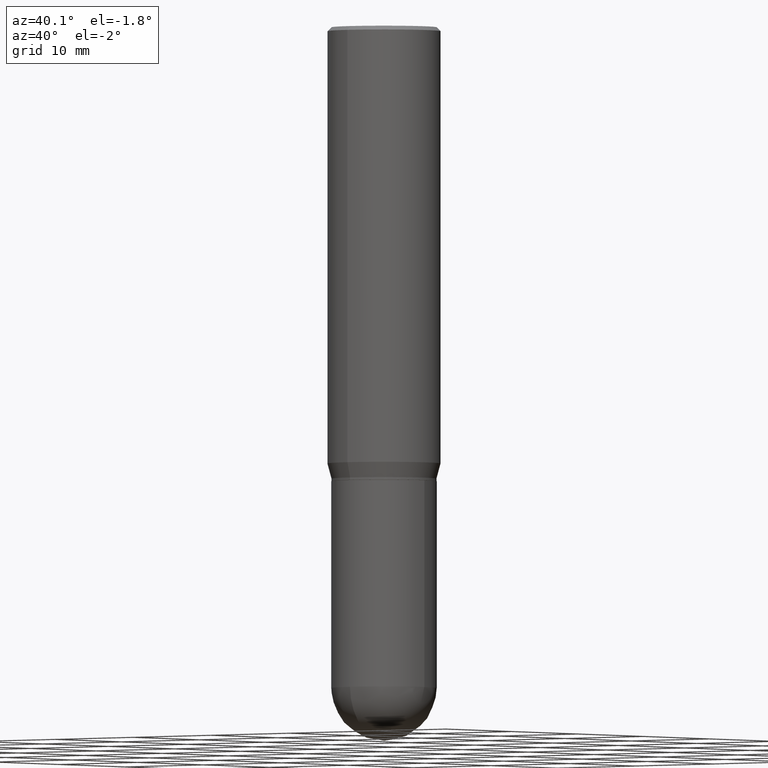
[diagram: clean part render]
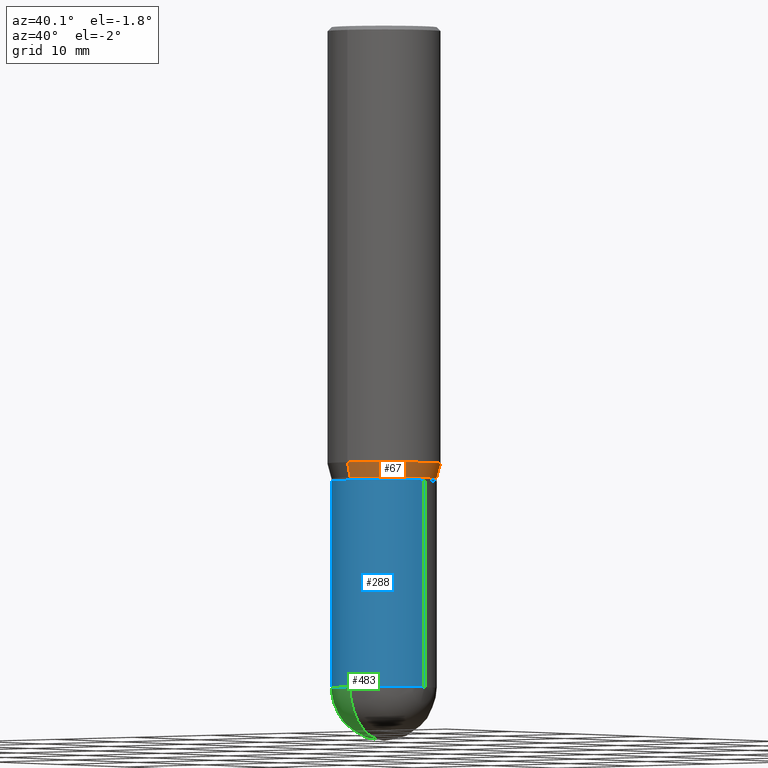
[diagram: same view with three faces highlighted in distinct colors, each labeled with its STEP entity id]
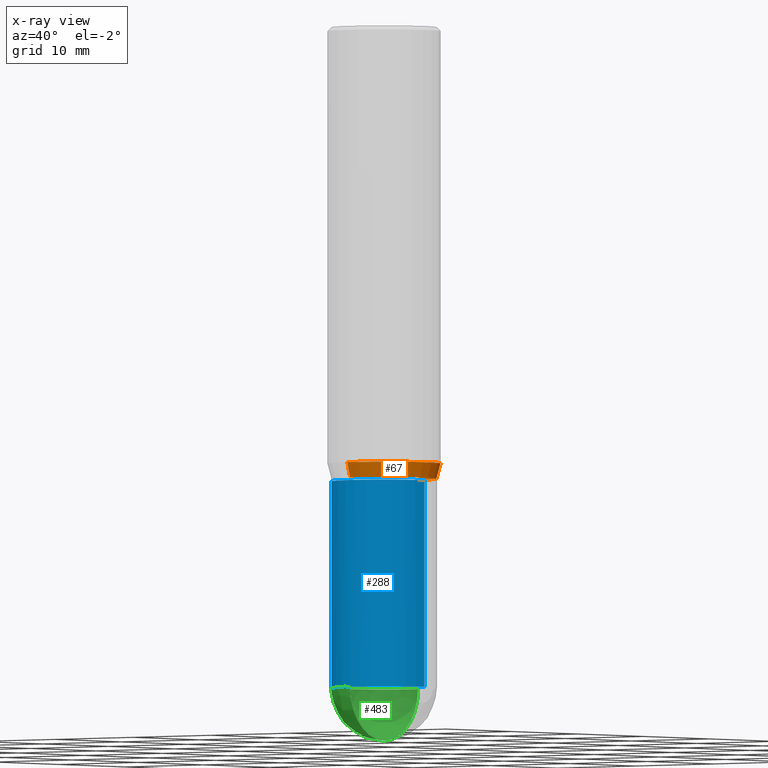
[diagram: x-ray of the same camera — body ghosted, the three highlighted faces saturated]
A machine part, auxiliary view with three faces highlighted in distinct colors.
The next image is the same camera in x-ray (body ghosted, the three faces saturated) — at least one of them is partly hidden behind the body in this view.
Their STEP definitions:

[orange] entity #67 — the highlighted conical surface has half-angle 15 deg.
#5 = LINE ( 'NONE', #230, #276 ) ;
#16 = AXIS2_PLACEMENT_3D ( 'NONE', #419, #59, #169 ) ;
#21 = FACE_OUTER_BOUND ( 'NONE', #87, .T. ) ;
#59 = DIRECTION ( 'NONE',  ( -2.445434585093504913E-29, 3.491530345394105536E-15, 1.000000000000000000 ) ) ;
#67 = ADVANCED_FACE ( 'NONE', ( #21 ), #424, .T. ) ;
#70 = LINE ( 'NONE', #470, #511 ) ;
#73 = CARTESIAN_POINT ( 'NONE',  ( -1.418239719838037782E-15, -0.2031000000000060257, -1.739999999999999103 ) ) ;
#84 = CIRCLE ( 'NONE', #16, 0.2030999999999999472 ) ;
#87 = EDGE_LOOP ( 'NONE', ( #92, #411, #477, #294 ) ) ;
#92 = ORIENTED_EDGE ( 'NONE', *, *, #203, .T. ) ;
#94 = CARTESIAN_POINT ( 'NONE',  ( 4.255056178062698487E-29, -6.075262800985744342E-15, -1.739999999999999991 ) ) ;
#113 = DIRECTION ( 'NONE',  ( -2.445434585093504913E-29, 3.491530345394105536E-15, 1.000000000000000000 ) ) ;
#121 = CARTESIAN_POINT ( 'NONE',  ( 1.498712265402032742E-15, 0.2030999999999938688, -1.740000000000000879 ) ) ;
#130 = VERTEX_POINT ( 'NONE', #121 ) ;
#148 = CARTESIAN_POINT ( 'NONE',  ( 4.112226670313570876E-29, -5.871334401688686033E-15, -1.681593404861546848 ) ) ;
#169 = DIRECTION ( 'NONE',  ( -6.982962677686266711E-15, -1.000000000000000000, 4.035225987687243463E-15 ) ) ;
#175 = DIRECTION ( 'NONE',  ( -2.445434585093504913E-29, 3.491530345394105536E-15, 1.000000000000000000 ) ) ;
#203 = EDGE_CURVE ( 'NONE', #449, #130, #84, .T. ) ;
#230 = CARTESIAN_POINT ( 'NONE',  ( -1.418239719838037782E-15, -0.2031000000000060257, -1.739999999999999103 ) ) ;
#260 = CARTESIAN_POINT ( 'NONE',  ( -1.527523085743829428E-15, -0.2187500000000058287, -1.681593404861545960 ) ) ;
#275 = DIRECTION ( 'NONE',  ( 1.839019923739593216E-15, 0.2588190451025239591, 0.9659258262890674240 ) ) ;
#276 = VECTOR ( 'NONE', #392, 39.37007874015748854 ) ;
#291 = CIRCLE ( 'NONE', #446, 0.2187500000000000000 ) ;
#294 = ORIENTED_EDGE ( 'NONE', *, *, #342, .F. ) ;
#318 = VERTEX_POINT ( 'NONE', #260 ) ;
#321 = VERTEX_POINT ( 'NONE', #427 ) ;
#342 = EDGE_CURVE ( 'NONE', #449, #318, #5, .T. ) ;
#390 = EDGE_CURVE ( 'NONE', #318, #321, #291, .T. ) ;
#392 = DIRECTION ( 'NONE',  ( -1.807323732225323040E-15, -0.2588190451025171868, 0.9659258262890693114 ) ) ;
#401 = EDGE_CURVE ( 'NONE', #130, #321, #70, .T. ) ;
#411 = ORIENTED_EDGE ( 'NONE', *, *, #401, .T. ) ;
#415 = AXIS2_PLACEMENT_3D ( 'NONE', #94, #175, #505 ) ;
#419 = CARTESIAN_POINT ( 'NONE',  ( 4.255056178062698487E-29, -6.075262800985744342E-15, -1.739999999999999991 ) ) ;
#424 = CONICAL_SURFACE ( 'NONE', #415, 0.2030999999999999472, 0.2617993877991492413 ) ;
#427 = CARTESIAN_POINT ( 'NONE',  ( 1.554312234475260177E-15, 0.2187499999999941436, -1.681593404861547736 ) ) ;
#432 = DIRECTION ( 'NONE',  ( -6.982962677686265133E-15, -1.000000000000000000, 3.746534391310989557E-15 ) ) ;
#446 = AXIS2_PLACEMENT_3D ( 'NONE', #148, #113, #432 ) ;
#449 = VERTEX_POINT ( 'NONE', #73 ) ;
#470 = CARTESIAN_POINT ( 'NONE',  ( 1.443112296328805307E-15, 0.2030999999999938688, -1.740000000000000879 ) ) ;
#477 = ORIENTED_EDGE ( 'NONE', *, *, #390, .F. ) ;
#505 = DIRECTION ( 'NONE',  ( -6.982962677686266711E-15, -1.000000000000000000, 4.035225987687243463E-15 ) ) ;
#511 = VECTOR ( 'NONE', #275, 39.37007874015748143 ) ;

[blue] entity #288 — the highlighted cylindrical surface (partial cylindrical patch) has radius 5.1587 mm, axis along (-0, 0, 1).
#11 = CIRCLE ( 'NONE', #315, 0.2031000000000000583 ) ;
#17 = DIRECTION ( 'NONE',  ( 1.000000000000000000, -6.982962677686262766E-15, 0.000000000000000000 ) ) ;
#19 = ORIENTED_EDGE ( 'NONE', *, *, #287, .F. ) ;
#41 = EDGE_LOOP ( 'NONE', ( #232, #134, #368, #370, #19 ) ) ;
#49 = VERTEX_POINT ( 'NONE', #236 ) ;
#54 = DIRECTION ( 'NONE',  ( -2.445468806185136597E-29, 3.491481338843145583E-15, 1.000000000000000000 ) ) ;
#56 = VERTEX_POINT ( 'NONE', #324 ) ;
#77 = VECTOR ( 'NONE', #223, 39.37007874015748143 ) ;
#78 = VERTEX_POINT ( 'NONE', #162 ) ;
#81 = DIRECTION ( 'NONE',  ( -2.445468806185136597E-29, 3.491481338843145583E-15, 1.000000000000000000 ) ) ;
#105 = FACE_OUTER_BOUND ( 'NONE', #41, .T. ) ;
#127 = AXIS2_PLACEMENT_3D ( 'NONE', #165, #258, #379 ) ;
#132 = CARTESIAN_POINT ( 'NONE',  ( 0.2031000000000000583, -8.919512802275635677E-15, -2.546899999999999942 ) ) ;
#134 = ORIENTED_EDGE ( 'NONE', *, *, #140, .T. ) ;
#140 = EDGE_CURVE ( 'NONE', #56, #493, #437, .T. ) ;
#142 = CARTESIAN_POINT ( 'NONE',  ( 4.279570410823988484E-29, -6.110092342975504671E-15, -1.750000000000000000 ) ) ;
#150 = CARTESIAN_POINT ( 'NONE',  ( 0.2031000000000000028, -1.418239719838080775E-15, 9.903515031641546145E-30 ) ) ;
#155 = CARTESIAN_POINT ( 'NONE',  ( -1.443112296328700980E-15, -0.2031000000000088845, -2.546899999999999498 ) ) ;
#162 = CARTESIAN_POINT ( 'NONE',  ( -0.2031000000000000028, -6.058160786108792588E-15, -1.750000000000000000 ) ) ;
#165 = CARTESIAN_POINT ( 'NONE',  ( 0.000000000000000000, 0.000000000000000000, 0.000000000000000000 ) ) ;
#167 = EDGE_CURVE ( 'NONE', #273, #49, #226, .T. ) ;
#206 = AXIS2_PLACEMENT_3D ( 'NONE', #142, #54, #305 ) ;
#223 = DIRECTION ( 'NONE',  ( -2.445468806185136877E-29, 3.491481338843145188E-15, 1.000000000000000000 ) ) ;
#226 = LINE ( 'NONE', #150, #77 ) ;
#232 = ORIENTED_EDGE ( 'NONE', *, *, #310, .F. ) ;
#236 = CARTESIAN_POINT ( 'NONE',  ( 0.2031000000000000028, -7.528332062813585446E-15, -1.750000000000000000 ) ) ;
#239 = DIRECTION ( 'NONE',  ( 1.000000000000000000, -6.982962677686262766E-15, 0.000000000000000000 ) ) ;
#258 = DIRECTION ( 'NONE',  ( -2.445468806185136597E-29, 3.491481338843145583E-15, 1.000000000000000000 ) ) ;
#273 = VERTEX_POINT ( 'NONE', #132 ) ;
#278 = EDGE_CURVE ( 'NONE', #493, #273, #11, .T. ) ;
#282 = CARTESIAN_POINT ( 'NONE',  ( 6.228364502472924746E-29, -8.892453821899607499E-15, -2.546899999999999942 ) ) ;
#287 = EDGE_CURVE ( 'NONE', #78, #49, #348, .T. ) ;
#288 = ADVANCED_FACE ( 'NONE', ( #105 ), #456, .T. ) ;
#300 = DIRECTION ( 'NONE',  ( -2.445468806185136597E-29, 3.491481338843145583E-15, 1.000000000000000000 ) ) ;
#305 = DIRECTION ( 'NONE',  ( 1.000000000000000000, -6.982962677686269866E-15, 0.000000000000000000 ) ) ;
#310 = EDGE_CURVE ( 'NONE', #56, #78, #461, .T. ) ;
#315 = AXIS2_PLACEMENT_3D ( 'NONE', #506, #300, #17 ) ;
#324 = CARTESIAN_POINT ( 'NONE',  ( -0.2031000000000000583, -6.058160786108791010E-15, -2.546899999999999942 ) ) ;
#348 = CIRCLE ( 'NONE', #206, 0.2031000000000000028 ) ;
#368 = ORIENTED_EDGE ( 'NONE', *, *, #278, .T. ) ;
#370 = ORIENTED_EDGE ( 'NONE', *, *, #167, .T. ) ;
#379 = DIRECTION ( 'NONE',  ( 1.000000000000000000, -6.982962677686266711E-15, 4.876176775795935793E-29 ) ) ;
#437 = CIRCLE ( 'NONE', #500, 0.2031000000000000583 ) ;
#456 = CYLINDRICAL_SURFACE ( 'NONE', #127, 0.2031000000000000028 ) ;
#461 = LINE ( 'NONE', #502, #509 ) ;
#493 = VERTEX_POINT ( 'NONE', #155 ) ;
#497 = DIRECTION ( 'NONE',  ( -2.445468806185136877E-29, 3.491481338843145188E-15, 1.000000000000000000 ) ) ;
#500 = AXIS2_PLACEMENT_3D ( 'NONE', #282, #81, #239 ) ;
#502 = CARTESIAN_POINT ( 'NONE',  ( -0.2031000000000000028, 1.443112296328763497E-15, -9.990357168307714203E-30 ) ) ;
#506 = CARTESIAN_POINT ( 'NONE',  ( 6.228364502472924746E-29, -8.892453821899607499E-15, -2.546899999999999942 ) ) ;
#509 = VECTOR ( 'NONE', #497, 39.37007874015748143 ) ;

[green] entity #483 — the highlighted spherical surface has radius 5.1587 mm.
#43 = CIRCLE ( 'NONE', #353, 0.2030999999999999472 ) ;
#56 = VERTEX_POINT ( 'NONE', #324 ) ;
#58 = EDGE_CURVE ( 'NONE', #478, #347, #43, .T. ) ;
#81 = DIRECTION ( 'NONE',  ( -2.445468806185136597E-29, 3.491481338843145583E-15, 1.000000000000000000 ) ) ;
#89 = ORIENTED_EDGE ( 'NONE', *, *, #140, .F. ) ;
#97 = ORIENTED_EDGE ( 'NONE', *, *, #263, .T. ) ;
#111 = CARTESIAN_POINT ( 'NONE',  ( 6.228364502472924746E-29, -8.892453821899607499E-15, -2.546899999999999942 ) ) ;
#114 = ORIENTED_EDGE ( 'NONE', *, *, #332, .F. ) ;
#137 = AXIS2_PLACEMENT_3D ( 'NONE', #494, #479, #369 ) ;
#140 = EDGE_CURVE ( 'NONE', #56, #493, #437, .T. ) ;
#153 = CARTESIAN_POINT ( 'NONE',  ( 6.716355003342508555E-29, -9.614009970063991023E-15, -2.750000000000000000 ) ) ;
#155 = CARTESIAN_POINT ( 'NONE',  ( -1.443112296328700980E-15, -0.2031000000000088845, -2.546899999999999498 ) ) ;
#159 = CIRCLE ( 'NONE', #363, 0.2030999999999999472 ) ;
#181 = DIRECTION ( 'NONE',  ( 1.000000000000000000, -6.982962677686262766E-15, 0.000000000000000000 ) ) ;
#202 = CARTESIAN_POINT ( 'NONE',  ( 6.210996075139691695E-29, -8.917326398390289827E-15, -2.546899999999999942 ) ) ;
#216 = DIRECTION ( 'NONE',  ( 6.982962677686266711E-15, 1.000000000000000000, 0.000000000000000000 ) ) ;
#233 = EDGE_LOOP ( 'NONE', ( #377, #97, #89, #114 ) ) ;
#234 = SPHERICAL_SURFACE ( 'NONE', #137, 0.2030999999999999472 ) ;
#238 = FACE_OUTER_BOUND ( 'NONE', #233, .T. ) ;
#239 = DIRECTION ( 'NONE',  ( 1.000000000000000000, -6.982962677686262766E-15, 0.000000000000000000 ) ) ;
#256 = DIRECTION ( 'NONE',  ( 1.000000000000000000, -6.982962677686265922E-15, 4.883557194083112340E-29 ) ) ;
#263 = EDGE_CURVE ( 'NONE', #478, #493, #159, .T. ) ;
#282 = CARTESIAN_POINT ( 'NONE',  ( 6.228364502472924746E-29, -8.892453821899607499E-15, -2.546899999999999942 ) ) ;
#311 = DIRECTION ( 'NONE',  ( -2.445468806185136597E-29, 3.491481338843145583E-15, 1.000000000000000000 ) ) ;
#324 = CARTESIAN_POINT ( 'NONE',  ( -0.2031000000000000583, -6.058160786108791010E-15, -2.546899999999999942 ) ) ;
#332 = EDGE_CURVE ( 'NONE', #347, #56, #397, .T. ) ;
#341 = CARTESIAN_POINT ( 'NONE',  ( 6.210996075139691695E-29, -8.917326398390289827E-15, -2.546899999999999942 ) ) ;
#347 = VERTEX_POINT ( 'NONE', #364 ) ;
#350 = DIRECTION ( 'NONE',  ( -1.000000000000000000, 7.105427357601001070E-15, -4.926315508542082329E-29 ) ) ;
#353 = AXIS2_PLACEMENT_3D ( 'NONE', #341, #256, #216 ) ;
#363 = AXIS2_PLACEMENT_3D ( 'NONE', #202, #350, #384 ) ;
#364 = CARTESIAN_POINT ( 'NONE',  ( 1.418239719838142898E-15, 0.2030999999999910932, -2.546900000000000830 ) ) ;
#369 = DIRECTION ( 'NONE',  ( 6.982962677686266711E-15, 1.000000000000000000, -2.690150658458162309E-15 ) ) ;
#377 = ORIENTED_EDGE ( 'NONE', *, *, #58, .F. ) ;
#384 = DIRECTION ( 'NONE',  ( -7.105427357601001070E-15, -1.000000000000000000, 0.000000000000000000 ) ) ;
#397 = CIRCLE ( 'NONE', #425, 0.2031000000000000583 ) ;
#425 = AXIS2_PLACEMENT_3D ( 'NONE', #111, #311, #181 ) ;
#437 = CIRCLE ( 'NONE', #500, 0.2031000000000000583 ) ;
#478 = VERTEX_POINT ( 'NONE', #153 ) ;
#479 = DIRECTION ( 'NONE',  ( -1.000000000000000000, 6.982962677686266711E-15, -4.883557194083112901E-29 ) ) ;
#483 = ADVANCED_FACE ( 'NONE', ( #238 ), #234, .T. ) ;
#493 = VERTEX_POINT ( 'NONE', #155 ) ;
#494 = CARTESIAN_POINT ( 'NONE',  ( 6.210996075139691695E-29, -8.917326398390289827E-15, -2.546899999999999942 ) ) ;
#500 = AXIS2_PLACEMENT_3D ( 'NONE', #282, #81, #239 ) ;